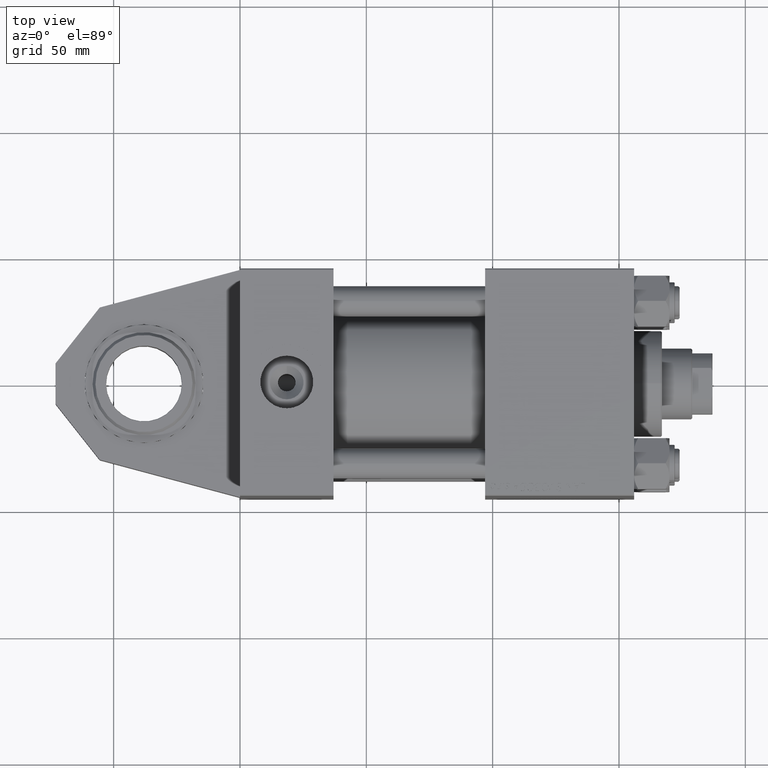
[diagram: clean part render]
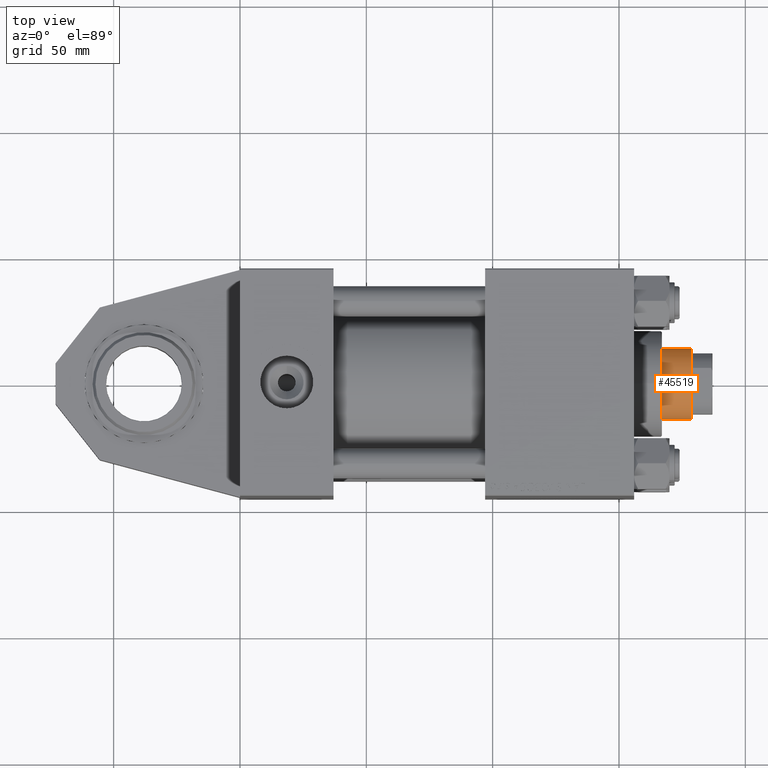
[diagram: same view with one face highlighted and labeled with its STEP entity id]
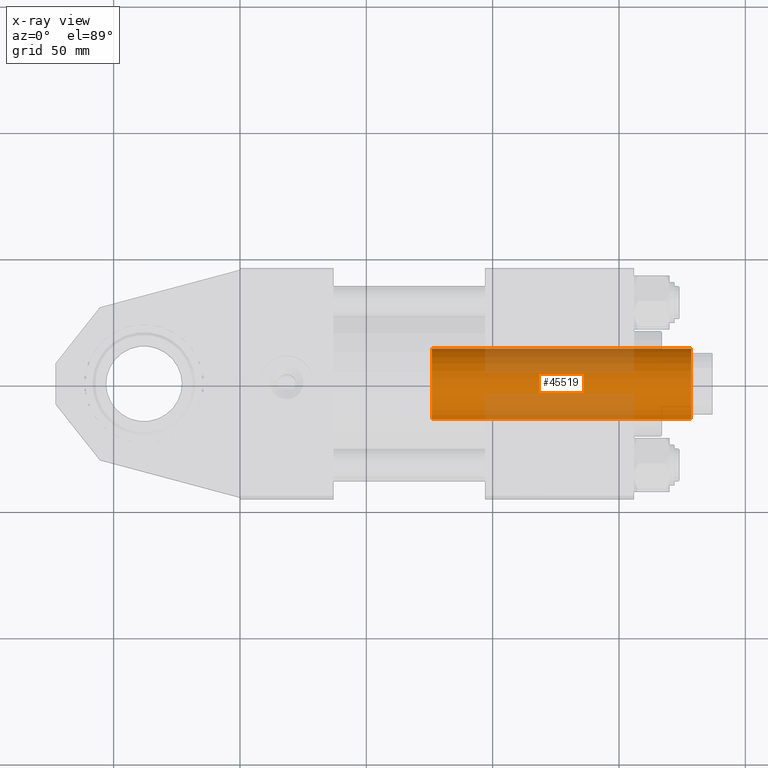
[diagram: x-ray of the same camera — body ghosted, the highlighted face saturated]
A machine part, top view. The second image highlights one B-rep face of the part: STEP entity #45519.
The next image is the same camera in x-ray: the body ghosted, the highlighted face saturated — about 40% of this face is hidden behind the body in this view.
In plain terms, the highlighted cylindrical surface (edge-blend (fillet) strip) has radius 14 mm, axis along (-1, 0, 0).
Its self-contained STEP definition (entity closure, byte-faithful):
#34 = EDGE_CURVE ( 'NONE', #3189, #15194, #14781, .T. ) ;
#531 = DIRECTION ( 'NONE',  ( 0.000000000000000000, 0.000000000000000000, -1.000000000000000000 ) ) ;
#1239 = CARTESIAN_POINT ( 'NONE',  ( 0.000000000000000000, 0.000000000000000000, 142.0000000000000000 ) ) ;
#1758 = VECTOR ( 'NONE', #30600, 1000.000000000000000 ) ;
#3189 = VERTEX_POINT ( 'NONE', #33016 ) ;
#3786 = ORIENTED_EDGE ( 'NONE', *, *, #11006, .T. ) ;
#4803 = DIRECTION ( 'NONE',  ( -1.000000000000000000, 0.000000000000000000, 0.000000000000000000 ) ) ;
#5468 = ORIENTED_EDGE ( 'NONE', *, *, #23852, .T. ) ;
#6993 = CIRCLE ( 'NONE', #45897, 14.00000000000000178 ) ;
#7155 = DIRECTION ( 'NONE',  ( -0.000000000000000000, -0.000000000000000000, -1.000000000000000000 ) ) ;
#9402 = AXIS2_PLACEMENT_3D ( 'NONE', #47021, #531, #46517 ) ;
#11006 = EDGE_CURVE ( 'NONE', #17004, #43759, #34155, .T. ) ;
#12927 = DIRECTION ( 'NONE',  ( -0.000000000000000000, -0.000000000000000000, -1.000000000000000000 ) ) ;
#14781 = LINE ( 'NONE', #45770, #17675 ) ;
#15096 = CARTESIAN_POINT ( 'NONE',  ( -14.00000000000000178, 0.000000000000000000, 142.0000000000000000 ) ) ;
#15194 = VERTEX_POINT ( 'NONE', #50131 ) ;
#15760 = CARTESIAN_POINT ( 'NONE',  ( -14.00000000000000178, 0.000000000000000000, 39.00000000000000000 ) ) ;
#17004 = VERTEX_POINT ( 'NONE', #18510 ) ;
#17675 = VECTOR ( 'NONE', #7155, 1000.000000000000000 ) ;
#18510 = CARTESIAN_POINT ( 'NONE',  ( -14.00000000000000178, 0.000000000000000000, 141.5000000000000000 ) ) ;
#20566 = ORIENTED_EDGE ( 'NONE', *, *, #34, .F. ) ;
#23464 = ORIENTED_EDGE ( 'NONE', *, *, #23576, .T. ) ;
#23576 = EDGE_CURVE ( 'NONE', #3189, #17004, #49169, .T. ) ;
#23852 = EDGE_CURVE ( 'NONE', #43759, #15194, #6993, .T. ) ;
#24120 = CYLINDRICAL_SURFACE ( 'NONE', #33197, 14.00000000000000178 ) ;
#25396 = DIRECTION ( 'NONE',  ( 0.000000000000000000, 0.000000000000000000, 1.000000000000000000 ) ) ;
#26407 = DIRECTION ( 'NONE',  ( 1.000000000000000000, 0.000000000000000000, 0.000000000000000000 ) ) ;
#28929 = FACE_OUTER_BOUND ( 'NONE', #39618, .T. ) ;
#30600 = DIRECTION ( 'NONE',  ( -0.000000000000000000, -0.000000000000000000, -1.000000000000000000 ) ) ;
#33016 = CARTESIAN_POINT ( 'NONE',  ( 14.00000000000000178, 1.714505518806294835E-15, 141.5000000000000000 ) ) ;
#33197 = AXIS2_PLACEMENT_3D ( 'NONE', #1239, #12927, #4803 ) ;
#33774 = CARTESIAN_POINT ( 'NONE',  ( 0.000000000000000000, 0.000000000000000000, 39.00000000000000000 ) ) ;
#34155 = LINE ( 'NONE', #15096, #1758 ) ;
#39618 = EDGE_LOOP ( 'NONE', ( #20566, #23464, #3786, #5468 ) ) ;
#43759 = VERTEX_POINT ( 'NONE', #15760 ) ;
#45519 = ADVANCED_FACE ( 'NONE', ( #28929 ), #24120, .T. ) ;
#45770 = CARTESIAN_POINT ( 'NONE',  ( 14.00000000000000178, 1.714505518806294835E-15, 142.0000000000000000 ) ) ;
#45897 = AXIS2_PLACEMENT_3D ( 'NONE', #33774, #25396, #26407 ) ;
#46517 = DIRECTION ( 'NONE',  ( 1.000000000000000000, 0.000000000000000000, 0.000000000000000000 ) ) ;
#47021 = CARTESIAN_POINT ( 'NONE',  ( 0.000000000000000000, 0.000000000000000000, 141.5000000000000000 ) ) ;
#49169 = CIRCLE ( 'NONE', #9402, 14.00000000000000178 ) ;
#50131 = CARTESIAN_POINT ( 'NONE',  ( 14.00000000000000178, 1.714505518806294835E-15, 39.00000000000000000 ) ) ;